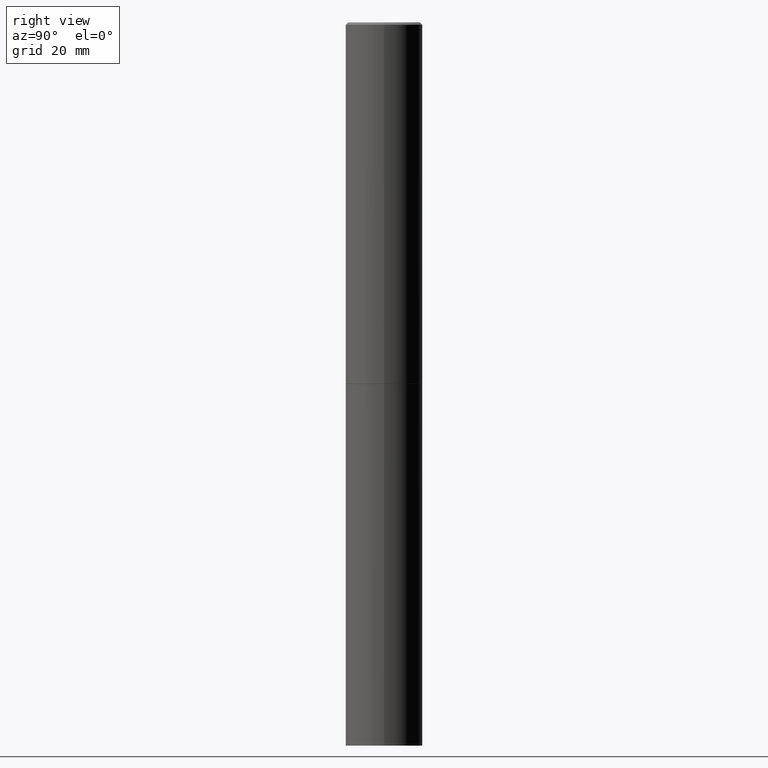
[diagram: clean part render]
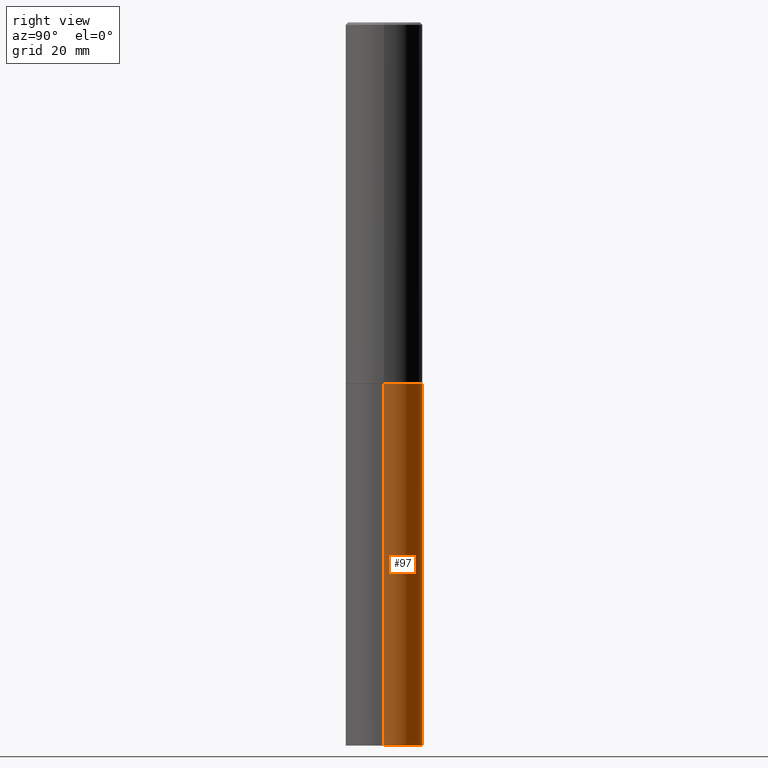
[diagram: same view with one face highlighted and labeled with its STEP entity id]
A machine part, right view. The second image highlights one B-rep face of the part: STEP entity #97.
In plain terms, the highlighted cylindrical surface (partial cylindrical patch) has radius 7.9997 mm, axis along (-0, 0, 1).
Its self-contained STEP definition (entity closure, byte-faithful):
#9 = CARTESIAN_POINT ( 'NONE',  ( -0.3149500000000000077, 2.237854346276435590E-15, -1.549218606675782676E-29 ) ) ;
#10 = LINE ( 'NONE', #9, #61 ) ;
#20 = VERTEX_POINT ( 'NONE', #353 ) ;
#30 = EDGE_CURVE ( 'NONE', #20, #284, #114, .T. ) ;
#38 = DIRECTION ( 'NONE',  ( 1.000000000000000000, -6.982962677686266711E-15, 4.876176775795936353E-29 ) ) ;
#39 = CARTESIAN_POINT ( 'NONE',  ( -0.3149500000000000077, -1.322626565159373987E-14, -2.952700000000000102 ) ) ;
#41 = AXIS2_PLACEMENT_3D ( 'NONE', #231, #260, #177 ) ;
#44 = CARTESIAN_POINT ( 'NONE',  ( 7.220735744022852519E-29, -1.030929694920215502E-14, -2.952700000000000102 ) ) ;
#48 = CIRCLE ( 'NONE', #232, 0.3149500000000000077 ) ;
#59 = LINE ( 'NONE', #198, #90 ) ;
#61 = VECTOR ( 'NONE', #292, 39.37007874015748143 ) ;
#74 = EDGE_CURVE ( 'NONE', #284, #85, #10, .T. ) ;
#85 = VERTEX_POINT ( 'NONE', #39 ) ;
#88 = ORIENTED_EDGE ( 'NONE', *, *, #30, .T. ) ;
#90 = VECTOR ( 'NONE', #318, 39.37007874015748143 ) ;
#92 = DIRECTION ( 'NONE',  ( -2.445468806185136597E-29, 3.491481338843145583E-15, 1.000000000000000000 ) ) ;
#96 = CYLINDRICAL_SURFACE ( 'NONE', #364, 0.3149500000000000077 ) ;
#97 = ADVANCED_FACE ( 'NONE', ( #98 ), #96, .T. ) ;
#98 = FACE_OUTER_BOUND ( 'NONE', #142, .T. ) ;
#114 = CIRCLE ( 'NONE', #41, 0.3149500000000000077 ) ;
#142 = EDGE_LOOP ( 'NONE', ( #88, #312, #219, #360 ) ) ;
#153 = DIRECTION ( 'NONE',  ( -2.445468806185136597E-29, 3.491481338843145583E-15, 1.000000000000000000 ) ) ;
#171 = EDGE_CURVE ( 'NONE', #196, #85, #48, .T. ) ;
#177 = DIRECTION ( 'NONE',  ( 1.000000000000000000, -6.982962677686263555E-15, 0.000000000000000000 ) ) ;
#182 = CARTESIAN_POINT ( 'NONE',  ( 0.3149500000000000077, -1.250858104453944331E-14, -2.952700000000000102 ) ) ;
#191 = CARTESIAN_POINT ( 'NONE',  ( -0.3149500000000000077, -1.322626565159373987E-14, -5.905499999999999972 ) ) ;
#196 = VERTEX_POINT ( 'NONE', #182 ) ;
#198 = CARTESIAN_POINT ( 'NONE',  ( 0.3149500000000000077, -2.199284095337289871E-15, 1.535751875536930130E-29 ) ) ;
#219 = ORIENTED_EDGE ( 'NONE', *, *, #171, .F. ) ;
#231 = CARTESIAN_POINT ( 'NONE',  ( 1.444171603492632270E-28, -2.061894304653819197E-14, -5.905499999999999972 ) ) ;
#232 = AXIS2_PLACEMENT_3D ( 'NONE', #44, #153, #358 ) ;
#260 = DIRECTION ( 'NONE',  ( -2.445468806185136597E-29, 3.491481338843145583E-15, 1.000000000000000000 ) ) ;
#284 = VERTEX_POINT ( 'NONE', #191 ) ;
#292 = DIRECTION ( 'NONE',  ( -2.445468806185136877E-29, 3.491481338843145188E-15, 1.000000000000000000 ) ) ;
#312 = ORIENTED_EDGE ( 'NONE', *, *, #74, .T. ) ;
#318 = DIRECTION ( 'NONE',  ( -2.445468806185136877E-29, 3.491481338843145188E-15, 1.000000000000000000 ) ) ;
#334 = EDGE_CURVE ( 'NONE', #20, #196, #59, .T. ) ;
#349 = CARTESIAN_POINT ( 'NONE',  ( 0.000000000000000000, 0.000000000000000000, 0.000000000000000000 ) ) ;
#353 = CARTESIAN_POINT ( 'NONE',  ( 0.3149500000000000077, -2.281822714187548341E-14, -5.905499999999999972 ) ) ;
#358 = DIRECTION ( 'NONE',  ( 1.000000000000000000, -6.982962677686263555E-15, 0.000000000000000000 ) ) ;
#360 = ORIENTED_EDGE ( 'NONE', *, *, #334, .F. ) ;
#364 = AXIS2_PLACEMENT_3D ( 'NONE', #349, #92, #38 ) ;